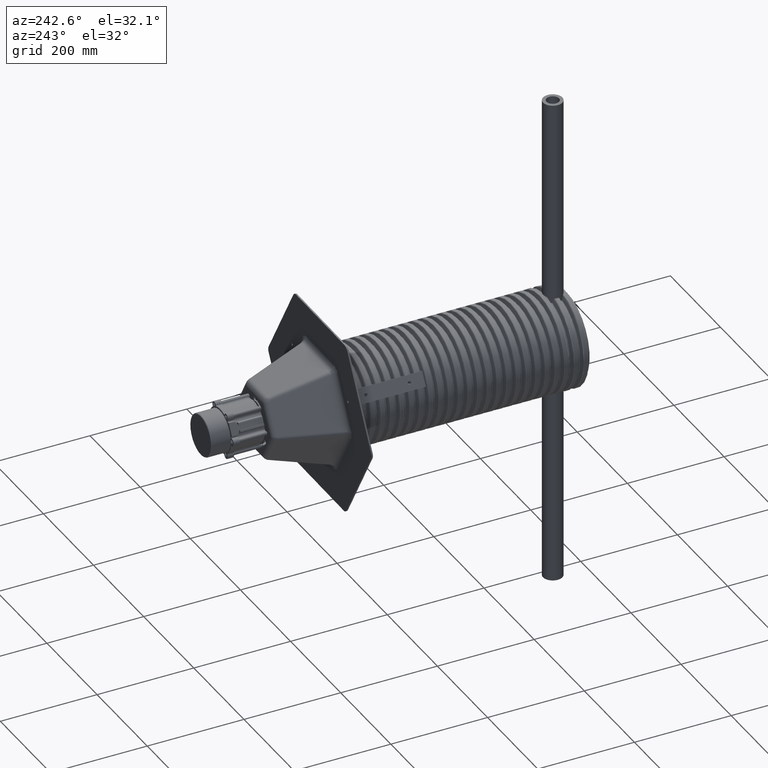
[diagram: clean part render]
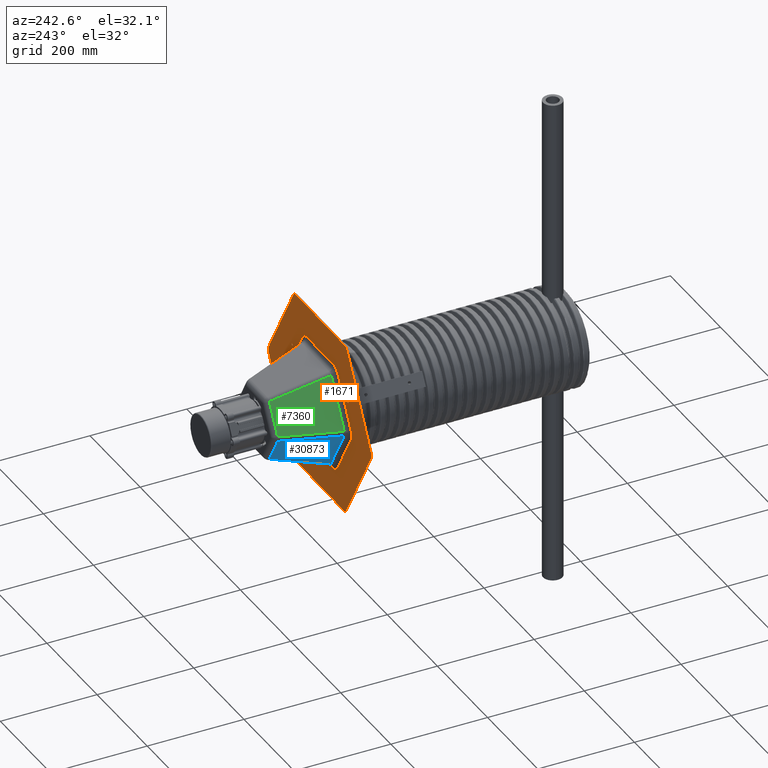
[diagram: same view with three faces highlighted in distinct colors, each labeled with its STEP entity id]
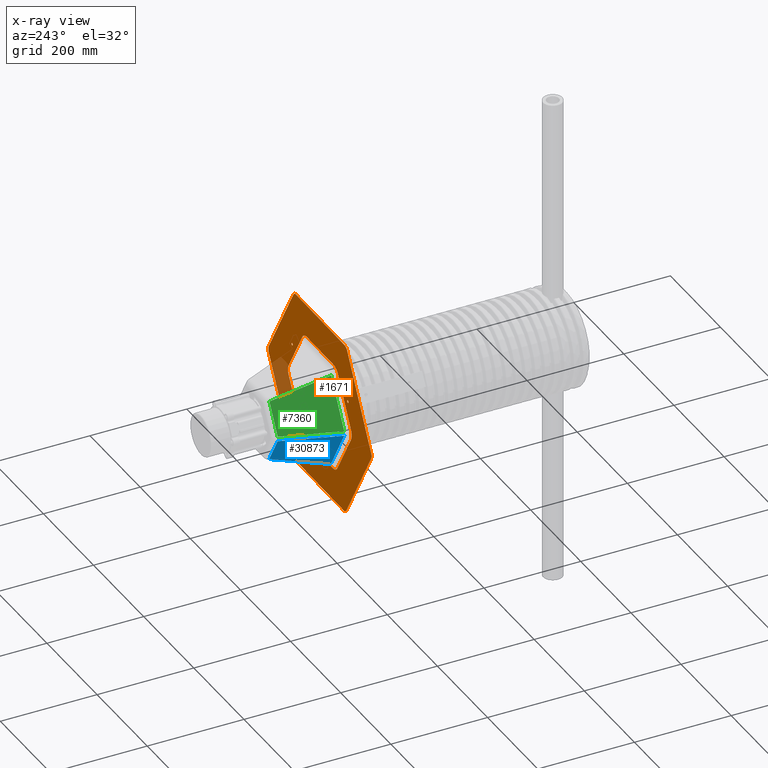
[diagram: x-ray of the same camera — body ghosted, the three highlighted faces saturated]
A machine part, auxiliary view with three faces highlighted in distinct colors.
The next image is the same camera in x-ray (body ghosted, the three faces saturated) — at least one of them is partly hidden behind the body in this view.
Their STEP definitions:

[orange] entity #1671 — the highlighted planar face has unit normal (-0, 1, 0).
#147 = CARTESIAN_POINT ( 'NONE',  ( -102.2335756172568040, -71.23590584283076055, 3.000000000000000000 ) ) ;
#188 = CARTESIAN_POINT ( 'NONE',  ( 63.69974159824984383, 111.8859771665176766, 3.000000000000000000 ) ) ;
#267 = VERTEX_POINT ( 'NONE', #6079 ) ;
#723 = VECTOR ( 'NONE', #41655, 1000.000000000000000 ) ;
#867 = LINE ( 'NONE', #17385, #27208 ) ;
#1041 = EDGE_LOOP ( 'NONE', ( #31811, #14384 ) ) ;
#1069 = ORIENTED_EDGE ( 'NONE', *, *, #26436, .T. ) ;
#1093 = CARTESIAN_POINT ( 'NONE',  ( 108.1334689171747954, 66.72215699525553134, 2.999999999999999112 ) ) ;
#1205 = DIRECTION ( 'NONE',  ( 1.000000000000000000, 0.0000000000000000000, 0.0000000000000000000 ) ) ;
#1225 = VECTOR ( 'NONE', #12747, 1000.000000000000114 ) ;
#1313 = LINE ( 'NONE', #3295, #19274 ) ;
#1415 = DIRECTION ( 'NONE',  ( 0.0000000000000000000, 0.0000000000000000000, 1.000000000000000000 ) ) ;
#1503 = CARTESIAN_POINT ( 'NONE',  ( -9.330518732437003138, 124.8735107438205461, 3.000000000000000000 ) ) ;
#1671 = ADVANCED_FACE ( 'NONE', ( #22682, #4730, #32199, #13161, #3617 ), #13228, .T. ) ;
#1733 = DIRECTION ( 'NONE',  ( 1.000000000000000000, 0.0000000000000000000, 0.0000000000000000000 ) ) ;
#1863 = DIRECTION ( 'NONE',  ( 1.000000000000000000, 0.0000000000000000000, 0.0000000000000000000 ) ) ;
#2224 = CARTESIAN_POINT ( 'NONE',  ( -109.9916431644735866, 63.50370478961811216, 2.999999999999998224 ) ) ;
#2310 = CARTESIAN_POINT ( 'NONE',  ( -7.316497875362673042, 126.0363062278059516, 2.999999999999999112 ) ) ;
#2505 = CARTESIAN_POINT ( 'NONE',  ( -102.2335756172568040, -71.23590584283076055, 3.000000000000000000 ) ) ;
#2562 = AXIS2_PLACEMENT_3D ( 'NONE', #8624, #33707, #12241 ) ;
#2678 = AXIS2_PLACEMENT_3D ( 'NONE', #22878, #1415, #26482 ) ;
#2725 = CARTESIAN_POINT ( 'NONE',  ( 105.4923940547533761, -69.35442614070198886, 2.999999999999999112 ) ) ;
#2804 = ORIENTED_EDGE ( 'NONE', *, *, #38245, .T. ) ;
#2971 = EDGE_CURVE ( 'NONE', #4984, #22494, #33375, .T. ) ;
#3295 = CARTESIAN_POINT ( 'NONE',  ( -3.642919299551294898E-14, -207.8460969082653094, 3.000000000000000000 ) ) ;
#3364 = ORIENTED_EDGE ( 'NONE', *, *, #19519, .T. ) ;
#3582 = ORIENTED_EDGE ( 'NONE', *, *, #10663, .F. ) ;
#3617 = FACE_OUTER_BOUND ( 'NONE', #19044, .T. ) ;
#3717 = ORIENTED_EDGE ( 'NONE', *, *, #33282, .T. ) ;
#3757 = DIRECTION ( 'NONE',  ( 1.000000000000000000, 0.0000000000000000000, 0.0000000000000000000 ) ) ;
#3760 = EDGE_CURVE ( 'NONE', #25364, #39553, #6571, .T. ) ;
#4418 = CARTESIAN_POINT ( 'NONE',  ( -180.0000000000000284, -96.99484522385709795, 3.000000000000000000 ) ) ;
#4618 = CARTESIAN_POINT ( 'NONE',  ( -1.865110631197190548E-14, -127.0074095792361959, 2.999999999999999112 ) ) ;
#4730 = FACE_BOUND ( 'NONE', #1041, .T. ) ;
#4876 = EDGE_CURVE ( 'NONE', #28813, #24734, #34017, .T. ) ;
#4889 = LINE ( 'NONE', #12559, #41852 ) ;
#4984 = VERTEX_POINT ( 'NONE', #44532 ) ;
#5138 = ORIENTED_EDGE ( 'NONE', *, *, #25126, .T. ) ;
#5460 = VECTOR ( 'NONE', #30139, 1000.000000000000114 ) ;
#5464 = AXIS2_PLACEMENT_3D ( 'NONE', #39173, #17772, #42741 ) ;
#5576 = LINE ( 'NONE', #9228, #21305 ) ;
#5612 = VERTEX_POINT ( 'NONE', #20996 ) ;
#5732 = CARTESIAN_POINT ( 'NONE',  ( 1.040834085586084257E-14, 207.8460969082652809, 3.000000000000000000 ) ) ;
#5823 = CARTESIAN_POINT ( 'NONE',  ( -105.4923940547534755, 69.35442614070194622, 2.999999999999999556 ) ) ;
#6030 = CARTESIAN_POINT ( 'NONE',  ( 5.999999999999984901, -204.3819952931275452, 3.000000000000000000 ) ) ;
#6044 = CARTESIAN_POINT ( 'NONE',  ( 112.8088919301160615, -56.68188008710408354, 2.999999999999999112 ) ) ;
#6055 = VERTEX_POINT ( 'NONE', #6030 ) ;
#6064 = CARTESIAN_POINT ( 'NONE',  ( -10.57531631285924156, 124.1548265256771657, 3.000000000000000000 ) ) ;
#6079 = CARTESIAN_POINT ( 'NONE',  ( 10.57531631285921137, -124.1548265256771941, 3.000000000000000000 ) ) ;
#6095 = CARTESIAN_POINT ( 'NONE',  ( -109.9916431644735439, -63.50370478961814058, 2.999999999999999112 ) ) ;
#6379 = ORIENTED_EDGE ( 'NONE', *, *, #19805, .T. ) ;
#6571 = LINE ( 'NONE', #26641, #12743 ) ;
#7240 = ORIENTED_EDGE ( 'NONE', *, *, #30800, .T. ) ;
#7308 = VECTOR ( 'NONE', #30798, 999.9999999999998863 ) ;
#7313 = EDGE_CURVE ( 'NONE', #34447, #4984, #37713, .T. ) ;
#7460 = AXIS2_PLACEMENT_3D ( 'NONE', #12027, #37102, #15670 ) ;
#7730 = EDGE_CURVE ( 'NONE', #39553, #23834, #39892, .T. ) ;
#7749 = ORIENTED_EDGE ( 'NONE', *, *, #16573, .T. ) ;
#7824 = ORIENTED_EDGE ( 'NONE', *, *, #40244, .T. ) ;
#7978 = ORIENTED_EDGE ( 'NONE', *, *, #21707, .T. ) ;
#7991 = CIRCLE ( 'NONE', #35001, 12.00000000000000000 ) ;
#8062 = CARTESIAN_POINT ( 'NONE',  ( 7.316497875362649950, -126.0363062278059516, 2.999999999999999556 ) ) ;
#8624 = CARTESIAN_POINT ( 'NONE',  ( 168.0000000000000284, -96.99484522385709795, 3.000000000000000000 ) ) ;
#9228 = CARTESIAN_POINT ( 'NONE',  ( 9.330518732436996032, -124.8735107438205603, 3.000000000000000000 ) ) ;
#9312 = VERTEX_POINT ( 'NONE', #46235 ) ;
#9639 = CARTESIAN_POINT ( 'NONE',  ( 111.8498174117721362, -60.28525258398089193, 2.999999999999999112 ) ) ;
#9707 = CARTESIAN_POINT ( 'NONE',  ( -109.9916431644735866, 63.50370478961811216, 2.999999999999998224 ) ) ;
#9818 = ORIENTED_EDGE ( 'NONE', *, *, #19896, .T. ) ;
#10147 = EDGE_CURVE ( 'NONE', #27359, #6055, #7991, .T. ) ;
#10273 = CARTESIAN_POINT ( 'NONE',  ( -109.9916431644735439, -63.50370478961814058, 2.999999999999999112 ) ) ;
#10361 = AXIS2_PLACEMENT_3D ( 'NONE', #38275, #16861, #41838 ) ;
#10455 = CARTESIAN_POINT ( 'NONE',  ( 10.57531631285926110, 124.1548265256772083, 3.000000000000000000 ) ) ;
#10663 = EDGE_CURVE ( 'NONE', #21794, #46121, #25895, .T. ) ;
#10746 = LINE ( 'NONE', #27024, #1225 ) ;
#11051 = CARTESIAN_POINT ( 'NONE',  ( 66.19974159824985804, 111.8859771665176766, 3.000000000000000000 ) ) ;
#11243 = ORIENTED_EDGE ( 'NONE', *, *, #13335, .T. ) ;
#11318 =( BOUNDED_CURVE ( )  B_SPLINE_CURVE ( 3, ( #40316, #8062, #26084, #4618 ),
 .UNSPECIFIED., .F., .F. ) 
 B_SPLINE_CURVE_WITH_KNOTS ( ( 4, 4 ),
 ( 5.781736827145353530, 6.283185307179586232 ),
 .UNSPECIFIED. ) 
 CURVE ( )  GEOMETRIC_REPRESENTATION_ITEM ( )  RATIONAL_B_SPLINE_CURVE ( ( 1.000000000000000000, 0.9791553251799451907, 0.9791553251799451907, 1.000000000000000000 ) ) 
 REPRESENTATION_ITEM ( '' )  );
#11348 = CARTESIAN_POINT ( 'NONE',  ( -1.821459649775647449E-14, -193.9896904477142812, 3.000000000000000000 ) ) ;
#11543 = EDGE_CURVE ( 'NONE', #19616, #24402, #18012, .T. ) ;
#11867 = LINE ( 'NONE', #1503, #29810 ) ;
#12027 = CARTESIAN_POINT ( 'NONE',  ( -128.5606159927932879, -0.9905632959438803731, 3.000000000000000000 ) ) ;
#12241 = DIRECTION ( 'NONE',  ( 1.000000000000000000, 0.0000000000000000000, 0.0000000000000000000 ) ) ;
#12246 = VERTEX_POINT ( 'NONE', #14460 ) ;
#12377 = EDGE_CURVE ( 'NONE', #14897, #19616, #22933, .T. ) ;
#12559 = CARTESIAN_POINT ( 'NONE',  ( -103.4783731976790477, -70.51722162468739441, 3.000000000000000000 ) ) ;
#12743 = VECTOR ( 'NONE', #23029, 1000.000000000000000 ) ;
#12747 = DIRECTION ( 'NONE',  ( 0.8660254037844385966, -0.4999999999999999445, 0.0000000000000000000 ) ) ;
#12865 = VERTEX_POINT ( 'NONE', #16584 ) ;
#12962 = CARTESIAN_POINT ( 'NONE',  ( 174.0000000000000568, 107.3871500692703620, 3.000000000000000000 ) ) ;
#13161 = FACE_BOUND ( 'NONE', #29061, .T. ) ;
#13228 = PLANE ( 'NONE',  #10361 ) ;
#13335 = EDGE_CURVE ( 'NONE', #24086, #12865, #15315, .T. ) ;
#13386 = CARTESIAN_POINT ( 'NONE',  ( 108.1334689171748806, -66.72215699525541766, 2.999999999999999112 ) ) ;
#13837 = EDGE_CURVE ( 'NONE', #18157, #23953, #40245, .T. ) ;
#13885 = CARTESIAN_POINT ( 'NONE',  ( 61.19974159824982252, 111.8859771665176766, 3.000000000000000000 ) ) ;
#14012 = CARTESIAN_POINT ( 'NONE',  ( 174.0000000000000568, -107.3871500692703336, 3.000000000000000000 ) ) ;
#14106 = VERTEX_POINT ( 'NONE', #14882 ) ;
#14384 = ORIENTED_EDGE ( 'NONE', *, *, #41165, .F. ) ;
#14428 = CARTESIAN_POINT ( 'NONE',  ( 112.8088919301159905, 52.91892068284668227, 3.000000000000000000 ) ) ;
#14460 = CARTESIAN_POINT ( 'NONE',  ( -180.0000000000000284, 96.99484522385709795, 3.000000000000000000 ) ) ;
#14882 = CARTESIAN_POINT ( 'NONE',  ( 66.99258023428301101, -110.8974878807649702, 3.000000000000000000 ) ) ;
#14897 = VERTEX_POINT ( 'NONE', #27316 ) ;
#14965 = DIRECTION ( 'NONE',  ( 1.000000000000000000, 0.0000000000000000000, 0.0000000000000000000 ) ) ;
#15032 = LINE ( 'NONE', #19369, #5460 ) ;
#15102 = ORIENTED_EDGE ( 'NONE', *, *, #3760, .T. ) ;
#15158 = CIRCLE ( 'NONE', #19287, 2.500000000000015987 ) ;
#15193 = CARTESIAN_POINT ( 'NONE',  ( -168.0000000000000000, -96.99484522385716900, 3.000000000000000000 ) ) ;
#15315 =( BOUNDED_CURVE ( )  B_SPLINE_CURVE ( 3, ( #2224, #30732, #5823, #30890 ),
 .UNSPECIFIED., .F., .F. ) 
 B_SPLINE_CURVE_WITH_KNOTS ( ( 4, 4 ),
 ( 0.0000000000000000000, 0.5014484800342330351 ),
 .UNSPECIFIED. ) 
 CURVE ( )  GEOMETRIC_REPRESENTATION_ITEM ( )  RATIONAL_B_SPLINE_CURVE ( ( 1.000000000000000000, 0.9791553251799451907, 0.9791553251799451907, 1.000000000000000000 ) ) 
 REPRESENTATION_ITEM ( '' )  );
#15644 = EDGE_CURVE ( 'NONE', #14106, #39595, #41146, .T. ) ;
#15670 = DIRECTION ( 'NONE',  ( 1.000000000000000000, 0.0000000000000000000, 0.0000000000000000000 ) ) ;
#16573 = EDGE_CURVE ( 'NONE', #6055, #24498, #1313, .T. ) ;
#16584 = CARTESIAN_POINT ( 'NONE',  ( -102.2335756172569035, 71.23590584283070370, 3.000000000000000000 ) ) ;
#16632 = CARTESIAN_POINT ( 'NONE',  ( 109.9916431644734018, 63.50370478961828269, 2.999999999999999112 ) ) ;
#16810 = CARTESIAN_POINT ( 'NONE',  ( -112.8088919301161468, 56.68188008710405512, 2.999999999999999112 ) ) ;
#16861 = DIRECTION ( 'NONE',  ( 0.0000000000000000000, 0.0000000000000000000, 1.000000000000000000 ) ) ;
#16944 = CARTESIAN_POINT ( 'NONE',  ( -10.57531631285924156, 124.1548265256771657, 3.000000000000000000 ) ) ;
#17334 = EDGE_CURVE ( 'NONE', #12865, #43586, #11867, .T. ) ;
#17385 = CARTESIAN_POINT ( 'NONE',  ( -180.0000000000000284, 103.9230484541325836, 3.000000000000000000 ) ) ;
#17639 = ORIENTED_EDGE ( 'NONE', *, *, #7313, .T. ) ;
#17726 = CARTESIAN_POINT ( 'NONE',  ( -112.8088919301161468, 54.35628911913325112, 3.000000000000000000 ) ) ;
#17772 = DIRECTION ( 'NONE',  ( 0.0000000000000000000, 0.0000000000000000000, 1.000000000000000000 ) ) ;
#18012 = LINE ( 'NONE', #5732, #7308 ) ;
#18155 = AXIS2_PLACEMENT_3D ( 'NONE', #15193, #40200, #18804 ) ;
#18157 = VERTEX_POINT ( 'NONE', #147 ) ;
#18317 = VERTEX_POINT ( 'NONE', #19251 ) ;
#18573 = DIRECTION ( 'NONE',  ( 0.0000000000000000000, 0.0000000000000000000, 1.000000000000000000 ) ) ;
#18804 = DIRECTION ( 'NONE',  ( 1.000000000000000000, 0.0000000000000000000, 0.0000000000000000000 ) ) ;
#19014 = CARTESIAN_POINT ( 'NONE',  ( -111.8498174117722073, -60.28525258398088482, 2.999999999999999112 ) ) ;
#19044 = EDGE_LOOP ( 'NONE', ( #6379, #19637, #20155, #5138, #37939, #9818, #2804, #28787, #7749, #37011, #15102, #41598 ) ) ;
#19173 = CARTESIAN_POINT ( 'NONE',  ( -126.0606159927933589, -0.9905632959438801510, 3.000000000000000000 ) ) ;
#19251 = CARTESIAN_POINT ( 'NONE',  ( -1.865110631197190548E-14, -127.0074095792361959, 2.999999999999999112 ) ) ;
#19274 = VECTOR ( 'NONE', #46171, 1000.000000000000000 ) ;
#19287 = AXIS2_PLACEMENT_3D ( 'NONE', #44581, #23196, #1733 ) ;
#19320 = CARTESIAN_POINT ( 'NONE',  ( -112.8088919301161042, -56.68188008710410486, 2.999999999999999112 ) ) ;
#19369 = CARTESIAN_POINT ( 'NONE',  ( 103.4783731976789625, 70.51722162468746546, 3.000000000000000000 ) ) ;
#19519 = EDGE_CURVE ( 'NONE', #29255, #267, #5576, .T. ) ;
#19616 = VERTEX_POINT ( 'NONE', #24294 ) ;
#19637 = ORIENTED_EDGE ( 'NONE', *, *, #12377, .T. ) ;
#19805 = EDGE_CURVE ( 'NONE', #23834, #14897, #37521, .T. ) ;
#19896 = EDGE_CURVE ( 'NONE', #38575, #26178, #31871, .T. ) ;
#20078 = DIRECTION ( 'NONE',  ( -0.8660254037844387076, -0.4999999999999998890, 0.0000000000000000000 ) ) ;
#20130 = EDGE_CURVE ( 'NONE', #43586, #37253, #21101, .T. ) ;
#20155 = ORIENTED_EDGE ( 'NONE', *, *, #11543, .T. ) ;
#20261 = CARTESIAN_POINT ( 'NONE',  ( 112.8088919301160900, -54.35628911913327954, 3.000000000000000000 ) ) ;
#20490 = CARTESIAN_POINT ( 'NONE',  ( 109.9916431644734871, -63.50370478961816900, 2.999999999999997335 ) ) ;
#20618 = ORIENTED_EDGE ( 'NONE', *, *, #29252, .T. ) ;
#20738 = ORIENTED_EDGE ( 'NONE', *, *, #24305, .T. ) ;
#20959 = ORIENTED_EDGE ( 'NONE', *, *, #23424, .T. ) ;
#20996 = CARTESIAN_POINT ( 'NONE',  ( 102.2335756172567187, 71.23590584283083160, 3.000000000000000000 ) ) ;
#21101 =( BOUNDED_CURVE ( )  B_SPLINE_CURVE ( 3, ( #6064, #2310, #45311, #31127 ),
 .UNSPECIFIED., .F., .F. ) 
 B_SPLINE_CURVE_WITH_KNOTS ( ( 4, 4 ),
 ( 5.781736827145351754, 6.283185307179586232 ),
 .UNSPECIFIED. ) 
 CURVE ( )  GEOMETRIC_REPRESENTATION_ITEM ( )  RATIONAL_B_SPLINE_CURVE ( ( 1.000000000000000000, 0.9791553251799449686, 0.9791553251799449686, 1.000000000000000000 ) ) 
 REPRESENTATION_ITEM ( '' )  );
#21136 = CARTESIAN_POINT ( 'NONE',  ( 2.385150481294069307E-14, 127.0074095792361675, 2.999999999999999112 ) ) ;
#21280 = CARTESIAN_POINT ( 'NONE',  ( -7.316497875362702352, -126.0363062278059516, 2.999999999999999112 ) ) ;
#21305 = VECTOR ( 'NONE', #20078, 1000.000000000000000 ) ;
#21426 = CARTESIAN_POINT ( 'NONE',  ( 64.49258023428306785, -110.8974878807649702, 3.000000000000000000 ) ) ;
#21570 = AXIS2_PLACEMENT_3D ( 'NONE', #44056, #22667, #1205 ) ;
#21707 = EDGE_CURVE ( 'NONE', #18317, #39635, #24538, .T. ) ;
#21794 = VERTEX_POINT ( 'NONE', #11051 ) ;
#22321 = CARTESIAN_POINT ( 'NONE',  ( 61.99258023428314601, -110.8974878807649702, 3.000000000000000000 ) ) ;
#22395 = CARTESIAN_POINT ( 'NONE',  ( 105.4923940547532908, 69.35442614070210254, 2.999999999999999112 ) ) ;
#22488 = ORIENTED_EDGE ( 'NONE', *, *, #32935, .T. ) ;
#22494 = VERTEX_POINT ( 'NONE', #43886 ) ;
#22503 = EDGE_CURVE ( 'NONE', #267, #18317, #11318, .T. ) ;
#22667 = DIRECTION ( 'NONE',  ( 0.0000000000000000000, 0.0000000000000000000, 1.000000000000000000 ) ) ;
#22682 = FACE_BOUND ( 'NONE', #26191, .T. ) ;
#22720 = EDGE_CURVE ( 'NONE', #22494, #29255, #27992, .T. ) ;
#22878 = CARTESIAN_POINT ( 'NONE',  ( 7.806255641895631925E-15, 193.9896904477142527, 3.000000000000000000 ) ) ;
#22933 = CIRCLE ( 'NONE', #2678, 12.00000000000000000 ) ;
#23029 = DIRECTION ( 'NONE',  ( 0.0000000000000000000, 1.000000000000000000, 0.0000000000000000000 ) ) ;
#23196 = DIRECTION ( 'NONE',  ( 0.0000000000000000000, 0.0000000000000000000, 1.000000000000000000 ) ) ;
#23320 = DIRECTION ( 'NONE',  ( 0.0000000000000000000, 0.0000000000000000000, 1.000000000000000000 ) ) ;
#23424 = EDGE_CURVE ( 'NONE', #43060, #36418, #26888, .T. ) ;
#23812 = CARTESIAN_POINT ( 'NONE',  ( 112.8088919301159905, 52.91892068284668227, 3.000000000000000000 ) ) ;
#23834 = VERTEX_POINT ( 'NONE', #12962 ) ;
#23953 = VERTEX_POINT ( 'NONE', #10273 ) ;
#23985 = CARTESIAN_POINT ( 'NONE',  ( -105.4923940547534187, -69.35442614070200307, 2.999999999999999112 ) ) ;
#23993 = CARTESIAN_POINT ( 'NONE',  ( -112.8088919301161468, 52.91892068284653305, 3.000000000000000000 ) ) ;
#24086 = VERTEX_POINT ( 'NONE', #43102 ) ;
#24294 = CARTESIAN_POINT ( 'NONE',  ( -6.000000000000008882, 204.3819952931275168, 3.000000000000000000 ) ) ;
#24305 = EDGE_CURVE ( 'NONE', #39129, #5612, #15032, .T. ) ;
#24402 = VERTEX_POINT ( 'NONE', #27327 ) ;
#24498 = VERTEX_POINT ( 'NONE', #14012 ) ;
#24538 =( BOUNDED_CURVE ( )  B_SPLINE_CURVE ( 3, ( #39088, #24722, #21280, #46267 ),
 .UNSPECIFIED., .F., .F. ) 
 B_SPLINE_CURVE_WITH_KNOTS ( ( 4, 4 ),
 ( 2.101014484786074759E-31, 0.5014484800342340343 ),
 .UNSPECIFIED. ) 
 CURVE ( )  GEOMETRIC_REPRESENTATION_ITEM ( )  RATIONAL_B_SPLINE_CURVE ( ( 1.000000000000000000, 0.9791553251799449686, 0.9791553251799449686, 1.000000000000000000 ) ) 
 REPRESENTATION_ITEM ( '' )  );
#24722 = CARTESIAN_POINT ( 'NONE',  ( -3.716348494597271124, -127.0074095792361959, 2.999999999999999112 ) ) ;
#24734 = VERTEX_POINT ( 'NONE', #19173 ) ;
#24901 = DIRECTION ( 'NONE',  ( -4.736361296511237478E-16, 1.000000000000000000, 0.0000000000000000000 ) ) ;
#25009 = DIRECTION ( 'NONE',  ( 1.000000000000000000, 0.0000000000000000000, 0.0000000000000000000 ) ) ;
#25025 = CARTESIAN_POINT ( 'NONE',  ( -112.8088919301161468, 52.91892068284653305, 3.000000000000000000 ) ) ;
#25126 = EDGE_CURVE ( 'NONE', #24402, #12246, #46242, .T. ) ;
#25188 = ORIENTED_EDGE ( 'NONE', *, *, #17334, .T. ) ;
#25234 = DIRECTION ( 'NONE',  ( 0.0000000000000000000, 0.0000000000000000000, 1.000000000000000000 ) ) ;
#25352 = DIRECTION ( 'NONE',  ( -0.8660254037844385966, 0.5000000000000000000, 0.0000000000000000000 ) ) ;
#25364 = VERTEX_POINT ( 'NONE', #28181 ) ;
#25619 = CARTESIAN_POINT ( 'NONE',  ( 180.0000000000000568, 96.99484522385711216, 3.000000000000000000 ) ) ;
#25830 = CARTESIAN_POINT ( 'NONE',  ( 10.57531631285926110, 124.1548265256772083, 3.000000000000000000 ) ) ;
#25895 = CIRCLE ( 'NONE', #25996, 2.500000000000015987 ) ;
#25996 = AXIS2_PLACEMENT_3D ( 'NONE', #188, #25234, #3757 ) ;
#26003 = CARTESIAN_POINT ( 'NONE',  ( 102.2335756172567187, 71.23590584283083160, 3.000000000000000000 ) ) ;
#26084 = CARTESIAN_POINT ( 'NONE',  ( 3.716348494597223606, -127.0074095792361959, 2.999999999999999556 ) ) ;
#26148 = CARTESIAN_POINT ( 'NONE',  ( 109.9916431644734018, 63.50370478961828269, 2.999999999999999112 ) ) ;
#26178 = VERTEX_POINT ( 'NONE', #40408 ) ;
#26191 = EDGE_LOOP ( 'NONE', ( #33075, #37182 ) ) ;
#26436 = EDGE_CURVE ( 'NONE', #36418, #24086, #42506, .T. ) ;
#26482 = DIRECTION ( 'NONE',  ( 1.000000000000000000, 0.0000000000000000000, 0.0000000000000000000 ) ) ;
#26641 = CARTESIAN_POINT ( 'NONE',  ( 180.0000000000000568, -103.9230484541325978, 3.000000000000000000 ) ) ;
#26888 = LINE ( 'NONE', #17726, #42511 ) ;
#27024 = CARTESIAN_POINT ( 'NONE',  ( -180.0000000000000284, -103.9230484541326831, 3.000000000000000000 ) ) ;
#27208 = VECTOR ( 'NONE', #42372, 1000.000000000000000 ) ;
#27316 = CARTESIAN_POINT ( 'NONE',  ( 6.000000000000032863, 204.3819952931275168, 3.000000000000000000 ) ) ;
#27327 = CARTESIAN_POINT ( 'NONE',  ( -174.0000000000000853, 107.3871500692703194, 3.000000000000000000 ) ) ;
#27348 = CARTESIAN_POINT ( 'NONE',  ( -6.000000000000116351, -204.3819952931275168, 3.000000000000000000 ) ) ;
#27359 = VERTEX_POINT ( 'NONE', #27348 ) ;
#27588 = CARTESIAN_POINT ( 'NONE',  ( -108.1334689171749091, -66.72215699525544608, 2.999999999999999112 ) ) ;
#27806 = CARTESIAN_POINT ( 'NONE',  ( 102.2335756172568324, -71.23590584283073213, 3.000000000000000000 ) ) ;
#27992 =( BOUNDED_CURVE ( )  B_SPLINE_CURVE ( 3, ( #38436, #13386, #2725, #27806 ),
 .UNSPECIFIED., .F., .F. ) 
 B_SPLINE_CURVE_WITH_KNOTS ( ( 4, 4 ),
 ( 3.154042683594196107E-16, 0.5014484800342314808 ),
 .UNSPECIFIED. ) 
 CURVE ( )  GEOMETRIC_REPRESENTATION_ITEM ( )  RATIONAL_B_SPLINE_CURVE ( ( 1.000000000000000000, 0.9791553251799453017, 0.9791553251799453017, 1.000000000000000000 ) ) 
 REPRESENTATION_ITEM ( '' )  );
#28181 = CARTESIAN_POINT ( 'NONE',  ( 180.0000000000000568, -96.99484522385709795, 3.000000000000000000 ) ) ;
#28787 = ORIENTED_EDGE ( 'NONE', *, *, #10147, .T. ) ;
#28813 = VERTEX_POINT ( 'NONE', #38122 ) ;
#28853 =( BOUNDED_CURVE ( )  B_SPLINE_CURVE ( 3, ( #21136, #42519, #31899, #10455 ),
 .UNSPECIFIED., .F., .F. ) 
 B_SPLINE_CURVE_WITH_KNOTS ( ( 4, 4 ),
 ( 5.252536211965191278E-32, 0.5014484800342331461 ),
 .UNSPECIFIED. ) 
 CURVE ( )  GEOMETRIC_REPRESENTATION_ITEM ( )  RATIONAL_B_SPLINE_CURVE ( ( 1.000000000000000000, 0.9791553251799451907, 0.9791553251799451907, 1.000000000000000000 ) ) 
 REPRESENTATION_ITEM ( '' )  );
#29061 = EDGE_LOOP ( 'NONE', ( #20738, #22488, #7824, #17639, #33382, #45029, #3364, #31359, #7978, #20618, #30587, #7240, #20959, #1069, #11243, #25188, #34962, #3717 ) ) ;
#29252 = EDGE_CURVE ( 'NONE', #39635, #18157, #4889, .T. ) ;
#29255 = VERTEX_POINT ( 'NONE', #30427 ) ;
#29467 = EDGE_LOOP ( 'NONE', ( #36396, #3582 ) ) ;
#29677 = CIRCLE ( 'NONE', #37659, 2.499999999999932943 ) ;
#29810 = VECTOR ( 'NONE', #33782, 1000.000000000000000 ) ;
#30002 = CARTESIAN_POINT ( 'NONE',  ( -10.57531631285926998, -124.1548265256772083, 3.000000000000000000 ) ) ;
#30139 = DIRECTION ( 'NONE',  ( 0.8660254037844388186, -0.4999999999999996669, 0.0000000000000000000 ) ) ;
#30427 = CARTESIAN_POINT ( 'NONE',  ( 102.2335756172568324, -71.23590584283073213, 3.000000000000000000 ) ) ;
#30587 = ORIENTED_EDGE ( 'NONE', *, *, #13837, .T. ) ;
#30732 = CARTESIAN_POINT ( 'NONE',  ( -108.1334689171749801, 66.72215699525540344, 2.999999999999999556 ) ) ;
#30798 = DIRECTION ( 'NONE',  ( -0.8660254037844385966, -0.5000000000000002220, 0.0000000000000000000 ) ) ;
#30800 = EDGE_CURVE ( 'NONE', #23953, #43060, #43079, .T. ) ;
#30890 = CARTESIAN_POINT ( 'NONE',  ( -102.2335756172569035, 71.23590584283070370, 3.000000000000000000 ) ) ;
#31127 = CARTESIAN_POINT ( 'NONE',  ( 2.385150481294069307E-14, 127.0074095792361675, 2.999999999999999112 ) ) ;
#31170 = CARTESIAN_POINT ( 'NONE',  ( -111.8498174117722357, 60.28525258398084219, 2.999999999999999112 ) ) ;
#31359 = ORIENTED_EDGE ( 'NONE', *, *, #22503, .T. ) ;
#31545 = CIRCLE ( 'NONE', #2562, 12.00000000000001066 ) ;
#31811 = ORIENTED_EDGE ( 'NONE', *, *, #4876, .F. ) ;
#31871 = CIRCLE ( 'NONE', #18155, 12.00000000000001066 ) ;
#31899 = CARTESIAN_POINT ( 'NONE',  ( 7.316497875362693470, 126.0363062278059516, 2.999999999999999556 ) ) ;
#32199 = FACE_BOUND ( 'NONE', #29467, .T. ) ;
#32512 = EDGE_CURVE ( 'NONE', #24498, #25364, #31545, .T. ) ;
#32935 = EDGE_CURVE ( 'NONE', #5612, #9312, #40571, .T. ) ;
#33075 = ORIENTED_EDGE ( 'NONE', *, *, #39431, .F. ) ;
#33282 = EDGE_CURVE ( 'NONE', #37253, #39129, #28853, .T. ) ;
#33375 =( BOUNDED_CURVE ( )  B_SPLINE_CURVE ( 3, ( #41876, #6044, #9639, #20490 ),
 .UNSPECIFIED., .F., .F. ) 
 B_SPLINE_CURVE_WITH_KNOTS ( ( 4, 4 ),
 ( 5.781736827145350865, 6.283185307179586232 ),
 .UNSPECIFIED. ) 
 CURVE ( )  GEOMETRIC_REPRESENTATION_ITEM ( )  RATIONAL_B_SPLINE_CURVE ( ( 1.000000000000000000, 0.9791553251799449686, 0.9791553251799449686, 1.000000000000000000 ) ) 
 REPRESENTATION_ITEM ( '' )  );
#33382 = ORIENTED_EDGE ( 'NONE', *, *, #2971, .T. ) ;
#33534 = CARTESIAN_POINT ( 'NONE',  ( -109.9916431644735439, -63.50370478961814058, 2.999999999999999112 ) ) ;
#33629 = AXIS2_PLACEMENT_3D ( 'NONE', #44702, #23320, #1863 ) ;
#33707 = DIRECTION ( 'NONE',  ( 0.0000000000000000000, 0.0000000000000000000, 1.000000000000000000 ) ) ;
#33782 = DIRECTION ( 'NONE',  ( 0.8660254037844388186, 0.4999999999999997224, -0.0000000000000000000 ) ) ;
#34017 = CIRCLE ( 'NONE', #7460, 2.499999999999919176 ) ;
#34447 = VERTEX_POINT ( 'NONE', #14428 ) ;
#34826 = CARTESIAN_POINT ( 'NONE',  ( -112.8088919301161042, -52.91892068284656858, 3.000000000000000000 ) ) ;
#34962 = ORIENTED_EDGE ( 'NONE', *, *, #20130, .T. ) ;
#35001 = AXIS2_PLACEMENT_3D ( 'NONE', #11348, #36412, #14965 ) ;
#35220 = DIRECTION ( 'NONE',  ( 0.0000000000000000000, 0.0000000000000000000, 1.000000000000000000 ) ) ;
#36319 = EDGE_CURVE ( 'NONE', #12246, #38575, #867, .T. ) ;
#36396 = ORIENTED_EDGE ( 'NONE', *, *, #45357, .F. ) ;
#36412 = DIRECTION ( 'NONE',  ( 0.0000000000000000000, 0.0000000000000000000, 1.000000000000000000 ) ) ;
#36418 = VERTEX_POINT ( 'NONE', #25025 ) ;
#37011 = ORIENTED_EDGE ( 'NONE', *, *, #32512, .T. ) ;
#37102 = DIRECTION ( 'NONE',  ( 0.0000000000000000000, 0.0000000000000000000, 1.000000000000000000 ) ) ;
#37182 = ORIENTED_EDGE ( 'NONE', *, *, #15644, .F. ) ;
#37253 = VERTEX_POINT ( 'NONE', #37327 ) ;
#37327 = CARTESIAN_POINT ( 'NONE',  ( 2.385150481294069307E-14, 127.0074095792361675, 2.999999999999999112 ) ) ;
#37521 = LINE ( 'NONE', #39590, #44719 ) ;
#37635 = DIRECTION ( 'NONE',  ( -0.8660254037844387076, 0.4999999999999998335, 0.0000000000000000000 ) ) ;
#37659 = AXIS2_PLACEMENT_3D ( 'NONE', #21426, #35220, #25009 ) ;
#37713 = LINE ( 'NONE', #20261, #723 ) ;
#37939 = ORIENTED_EDGE ( 'NONE', *, *, #36319, .T. ) ;
#38042 = CARTESIAN_POINT ( 'NONE',  ( 111.8498174117720509, 60.28525258398101272, 2.999999999999999112 ) ) ;
#38122 = CARTESIAN_POINT ( 'NONE',  ( -131.0606159927932026, -0.9905632959438803731, 3.000000000000000000 ) ) ;
#38245 = EDGE_CURVE ( 'NONE', #26178, #27359, #10746, .T. ) ;
#38275 = CARTESIAN_POINT ( 'NONE',  ( 0.0000000000000000000, 0.0000000000000000000, 3.000000000000000000 ) ) ;
#38436 = CARTESIAN_POINT ( 'NONE',  ( 109.9916431644734871, -63.50370478961816900, 2.999999999999997335 ) ) ;
#38575 = VERTEX_POINT ( 'NONE', #4418 ) ;
#39088 = CARTESIAN_POINT ( 'NONE',  ( -1.865110631197190548E-14, -127.0074095792361959, 2.999999999999999112 ) ) ;
#39091 = CIRCLE ( 'NONE', #45740, 2.499999999999919176 ) ;
#39129 = VERTEX_POINT ( 'NONE', #25830 ) ;
#39173 = CARTESIAN_POINT ( 'NONE',  ( 168.0000000000000284, 96.99484522385711216, 3.000000000000000000 ) ) ;
#39431 = EDGE_CURVE ( 'NONE', #39595, #14106, #29677, .T. ) ;
#39553 = VERTEX_POINT ( 'NONE', #25619 ) ;
#39590 = CARTESIAN_POINT ( 'NONE',  ( 180.0000000000000568, 103.9230484541326121, 3.000000000000000000 ) ) ;
#39595 = VERTEX_POINT ( 'NONE', #22321 ) ;
#39635 = VERTEX_POINT ( 'NONE', #30002 ) ;
#39892 = CIRCLE ( 'NONE', #5464, 12.00000000000001066 ) ;
#39975 = CARTESIAN_POINT ( 'NONE',  ( -128.5606159927932879, -0.9905632959438803731, 3.000000000000000000 ) ) ;
#40200 = DIRECTION ( 'NONE',  ( 0.0000000000000000000, 0.0000000000000000000, 1.000000000000000000 ) ) ;
#40244 = EDGE_CURVE ( 'NONE', #9312, #34447, #40821, .T. ) ;
#40245 =( BOUNDED_CURVE ( )  B_SPLINE_CURVE ( 3, ( #2505, #23985, #27588, #6095 ),
 .UNSPECIFIED., .F., .F. ) 
 B_SPLINE_CURVE_WITH_KNOTS ( ( 4, 4 ),
 ( 5.781736827145351754, 6.283185307179586232 ),
 .UNSPECIFIED. ) 
 CURVE ( )  GEOMETRIC_REPRESENTATION_ITEM ( )  RATIONAL_B_SPLINE_CURVE ( ( 1.000000000000000000, 0.9791553251799449686, 0.9791553251799449686, 1.000000000000000000 ) ) 
 REPRESENTATION_ITEM ( '' )  );
#40316 = CARTESIAN_POINT ( 'NONE',  ( 10.57531631285921137, -124.1548265256771941, 3.000000000000000000 ) ) ;
#40408 = CARTESIAN_POINT ( 'NONE',  ( -174.0000000000000284, -107.3871500692704331, 3.000000000000000000 ) ) ;
#40571 =( BOUNDED_CURVE ( )  B_SPLINE_CURVE ( 3, ( #26003, #22395, #1093, #26148 ),
 .UNSPECIFIED., .F., .F. ) 
 B_SPLINE_CURVE_WITH_KNOTS ( ( 4, 4 ),
 ( 5.781736827145355306, 6.283185307179586232 ),
 .UNSPECIFIED. ) 
 CURVE ( )  GEOMETRIC_REPRESENTATION_ITEM ( )  RATIONAL_B_SPLINE_CURVE ( ( 1.000000000000000000, 0.9791553251799453017, 0.9791553251799453017, 1.000000000000000000 ) ) 
 REPRESENTATION_ITEM ( '' )  );
#40821 =( BOUNDED_CURVE ( )  B_SPLINE_CURVE ( 3, ( #16632, #38042, #45184, #23812 ),
 .UNSPECIFIED., .F., .F. ) 
 B_SPLINE_CURVE_WITH_KNOTS ( ( 4, 4 ),
 ( 2.365532012695644245E-16, 0.5014484800342345894 ),
 .UNSPECIFIED. ) 
 CURVE ( )  GEOMETRIC_REPRESENTATION_ITEM ( )  RATIONAL_B_SPLINE_CURVE ( ( 1.000000000000000000, 0.9791553251799449686, 0.9791553251799449686, 1.000000000000000000 ) ) 
 REPRESENTATION_ITEM ( '' )  );
#41146 = CIRCLE ( 'NONE', #21570, 2.499999999999932943 ) ;
#41165 = EDGE_CURVE ( 'NONE', #24734, #28813, #39091, .T. ) ;
#41598 = ORIENTED_EDGE ( 'NONE', *, *, #7730, .T. ) ;
#41655 = DIRECTION ( 'NONE',  ( 9.472722593022467068E-16, -1.000000000000000000, 0.0000000000000000000 ) ) ;
#41838 = DIRECTION ( 'NONE',  ( 1.000000000000000000, 0.0000000000000000000, -0.0000000000000000000 ) ) ;
#41852 = VECTOR ( 'NONE', #37635, 1000.000000000000000 ) ;
#41876 = CARTESIAN_POINT ( 'NONE',  ( 112.8088919301160900, -52.91892068284654016, 3.000000000000000000 ) ) ;
#42372 = DIRECTION ( 'NONE',  ( 0.0000000000000000000, -1.000000000000000000, 0.0000000000000000000 ) ) ;
#42506 =( BOUNDED_CURVE ( )  B_SPLINE_CURVE ( 3, ( #23993, #16810, #31170, #9707 ),
 .UNSPECIFIED., .F., .F. ) 
 B_SPLINE_CURVE_WITH_KNOTS ( ( 4, 4 ),
 ( 5.781736827145352642, 6.283185307179586232 ),
 .UNSPECIFIED. ) 
 CURVE ( )  GEOMETRIC_REPRESENTATION_ITEM ( )  RATIONAL_B_SPLINE_CURVE ( ( 1.000000000000000000, 0.9791553251799449686, 0.9791553251799449686, 1.000000000000000000 ) ) 
 REPRESENTATION_ITEM ( '' )  );
#42511 = VECTOR ( 'NONE', #24901, 1000.000000000000000 ) ;
#42519 = CARTESIAN_POINT ( 'NONE',  ( 3.716348494597269347, 127.0074095792361675, 2.999999999999999556 ) ) ;
#42741 = DIRECTION ( 'NONE',  ( 1.000000000000000000, 0.0000000000000000000, 0.0000000000000000000 ) ) ;
#43060 = VERTEX_POINT ( 'NONE', #34826 ) ;
#43079 =( BOUNDED_CURVE ( )  B_SPLINE_CURVE ( 3, ( #33534, #19014, #19320, #44287 ),
 .UNSPECIFIED., .F., .F. ) 
 B_SPLINE_CURVE_WITH_KNOTS ( ( 4, 4 ),
 ( 2.365532012695645231E-16, 0.5014484800342338122 ),
 .UNSPECIFIED. ) 
 CURVE ( )  GEOMETRIC_REPRESENTATION_ITEM ( )  RATIONAL_B_SPLINE_CURVE ( ( 1.000000000000000000, 0.9791553251799449686, 0.9791553251799449686, 1.000000000000000000 ) ) 
 REPRESENTATION_ITEM ( '' )  );
#43102 = CARTESIAN_POINT ( 'NONE',  ( -109.9916431644735866, 63.50370478961811216, 2.999999999999998224 ) ) ;
#43537 = DIRECTION ( 'NONE',  ( 1.000000000000000000, 0.0000000000000000000, 0.0000000000000000000 ) ) ;
#43586 = VERTEX_POINT ( 'NONE', #16944 ) ;
#43886 = CARTESIAN_POINT ( 'NONE',  ( 109.9916431644734871, -63.50370478961816900, 2.999999999999997335 ) ) ;
#44056 = CARTESIAN_POINT ( 'NONE',  ( 64.49258023428306785, -110.8974878807649702, 3.000000000000000000 ) ) ;
#44287 = CARTESIAN_POINT ( 'NONE',  ( -112.8088919301161042, -52.91892068284656858, 3.000000000000000000 ) ) ;
#44532 = CARTESIAN_POINT ( 'NONE',  ( 112.8088919301160900, -52.91892068284654016, 3.000000000000000000 ) ) ;
#44581 = CARTESIAN_POINT ( 'NONE',  ( 63.69974159824984383, 111.8859771665176766, 3.000000000000000000 ) ) ;
#44702 = CARTESIAN_POINT ( 'NONE',  ( -168.0000000000000000, 96.99484522385709795, 3.000000000000000000 ) ) ;
#44719 = VECTOR ( 'NONE', #25352, 1000.000000000000227 ) ;
#45029 = ORIENTED_EDGE ( 'NONE', *, *, #22720, .T. ) ;
#45184 = CARTESIAN_POINT ( 'NONE',  ( 112.8088919301159763, 56.68188008710421855, 2.999999999999999112 ) ) ;
#45311 = CARTESIAN_POINT ( 'NONE',  ( -3.716348494597231600, 127.0074095792361675, 2.999999999999999112 ) ) ;
#45357 = EDGE_CURVE ( 'NONE', #46121, #21794, #15158, .T. ) ;
#45740 = AXIS2_PLACEMENT_3D ( 'NONE', #39975, #18573, #43537 ) ;
#46121 = VERTEX_POINT ( 'NONE', #13885 ) ;
#46171 = DIRECTION ( 'NONE',  ( 0.8660254037844385966, 0.5000000000000001110, 0.0000000000000000000 ) ) ;
#46235 = CARTESIAN_POINT ( 'NONE',  ( 109.9916431644734018, 63.50370478961828269, 2.999999999999999112 ) ) ;
#46242 = CIRCLE ( 'NONE', #33629, 12.00000000000001066 ) ;
#46267 = CARTESIAN_POINT ( 'NONE',  ( -10.57531631285926998, -124.1548265256772083, 3.000000000000000000 ) ) ;

[blue] entity #30873 — the highlighted planar face has unit normal (-0.8282, 0.2752, -0.4883).
#951 = CARTESIAN_POINT ( 'NONE',  ( -89.74713911652985132, 57.36613649155890471, 35.16859414319462473 ) ) ;
#1927 = CARTESIAN_POINT ( 'NONE',  ( -96.46522126478822656, 61.24482302829390079, 11.69782613155777007 ) ) ;
#2579 = VECTOR ( 'NONE', #36501, 1000.000000000000000 ) ;
#2704 = LINE ( 'NONE', #951, #21770 ) ;
#3551 = CARTESIAN_POINT ( 'NONE',  ( -97.71001884521045611, 60.52613881015052044, 11.69782613155778783 ) ) ;
#3735 = EDGE_LOOP ( 'NONE', ( #20457, #16069, #19365, #42031 ) ) ;
#4382 = DIRECTION ( 'NONE',  ( 0.2717725502388413372, -0.1569079550387461885, 0.9494838464040530335 ) ) ;
#4956 = CARTESIAN_POINT ( 'NONE',  ( -4.806961960390543354, 75.29408252217598374, 129.3021738684422246 ) ) ;
#5292 = FACE_OUTER_BOUND ( 'NONE', #3735, .T. ) ;
#5634 = DIRECTION ( 'NONE',  ( -0.4806961960390562782, 0.8325902345447354636, 0.2751811557035179212 ) ) ;
#8193 = CARTESIAN_POINT ( 'NONE',  ( -4.806961960390556676, 114.1637437111403699, 11.69782613155778961 ) ) ;
#13318 = VERTEX_POINT ( 'NONE', #1927 ) ;
#15117 = VECTOR ( 'NONE', #26373, 1000.000000000000000 ) ;
#16069 = ORIENTED_EDGE ( 'NONE', *, *, #21714, .T. ) ;
#18306 = VERTEX_POINT ( 'NONE', #4956 ) ;
#19365 = ORIENTED_EDGE ( 'NONE', *, *, #40068, .T. ) ;
#20457 = ORIENTED_EDGE ( 'NONE', *, *, #41702, .T. ) ;
#21714 = EDGE_CURVE ( 'NONE', #44480, #13318, #38447, .T. ) ;
#21770 = VECTOR ( 'NONE', #4382, 999.9999999999998863 ) ;
#22774 = CARTESIAN_POINT ( 'NONE',  ( -33.80503459952077350, 58.55203747799383507, 129.3021738684422246 ) ) ;
#23740 = CARTESIAN_POINT ( 'NONE',  ( -62.80310723865100186, 41.80999243381168640, 129.3021738684422246 ) ) ;
#25742 = LINE ( 'NONE', #22774, #15117 ) ;
#25845 = VERTEX_POINT ( 'NONE', #23740 ) ;
#26373 = DIRECTION ( 'NONE',  ( 0.8660254037844388186, 0.4999999999999997224, -1.854289510869136585E-19 ) ) ;
#27128 = CARTESIAN_POINT ( 'NONE',  ( -48.34906166406021555, 83.74303130043300314, 27.67808602507797033 ) ) ;
#28052 = AXIS2_PLACEMENT_3D ( 'NONE', #27128, #5634, #30704 ) ;
#28648 = DIRECTION ( 'NONE',  ( -0.8660254037844388186, -0.4999999999999997224, 1.972629113372267717E-18 ) ) ;
#28943 = VECTOR ( 'NONE', #28648, 1000.000000000000000 ) ;
#29457 = CARTESIAN_POINT ( 'NONE',  ( -4.806961960390557564, 106.4063706376703919, 35.16859414319461763 ) ) ;
#30557 = PLANE ( 'NONE',  #28052 ) ;
#30704 = DIRECTION ( 'NONE',  ( -0.8660254037844388186, -0.4999999999999997224, 0.0000000000000000000 ) ) ;
#30873 = ADVANCED_FACE ( 'NONE', ( #5292 ), #30557, .T. ) ;
#31167 = LINE ( 'NONE', #29457, #2579 ) ;
#31284 = EDGE_CURVE ( 'NONE', #25845, #18306, #25742, .T. ) ;
#36501 = DIRECTION ( 'NONE',  ( 2.775557561562891351E-17, 0.3138159100774922106, -0.9494838464040530335 ) ) ;
#38447 = LINE ( 'NONE', #3551, #28943 ) ;
#40068 = EDGE_CURVE ( 'NONE', #13318, #25845, #2704, .T. ) ;
#41702 = EDGE_CURVE ( 'NONE', #18306, #44480, #31167, .T. ) ;
#42031 = ORIENTED_EDGE ( 'NONE', *, *, #31284, .T. ) ;
#44480 = VERTEX_POINT ( 'NONE', #8193 ) ;

[green] entity #7360 — the highlighted planar face has unit normal (-0.8369, 0.2752, 0.4731).
#1234 = VERTEX_POINT ( 'NONE', #33561 ) ;
#2293 = VECTOR ( 'NONE', #4726, 1000.000000000000000 ) ;
#2344 = VERTEX_POINT ( 'NONE', #11079 ) ;
#2843 = CARTESIAN_POINT ( 'NONE',  ( -101.2721832251787930, 52.91892068284654016, 11.69782613155778961 ) ) ;
#4726 = DIRECTION ( 'NONE',  ( 4.736361296511237478E-16, -1.000000000000000000, 5.229490850100713378E-33 ) ) ;
#5137 = VERTEX_POINT ( 'NONE', #42269 ) ;
#6647 = LINE ( 'NONE', #23476, #36976 ) ;
#7360 = ADVANCED_FACE ( 'NONE', ( #18685 ), #27770, .T. ) ;
#7386 = VERTEX_POINT ( 'NONE', #2843 ) ;
#9372 = CARTESIAN_POINT ( 'NONE',  ( -94.55410107692041777, 49.04023414611154408, 35.16859414319463184 ) ) ;
#9537 = ORIENTED_EDGE ( 'NONE', *, *, #36948, .T. ) ;
#11079 = CARTESIAN_POINT ( 'NONE',  ( -67.61006919904154699, -33.48409008836433287, 129.3021738684422246 ) ) ;
#14273 = VECTOR ( 'NONE', #17496, 1000.000000000000000 ) ;
#15580 = CARTESIAN_POINT ( 'NONE',  ( -101.2721832251787362, -54.35628911913329375, 11.69782613155778606 ) ) ;
#17496 = DIRECTION ( 'NONE',  ( -4.736361296511237478E-16, 1.000000000000000000, -2.054785618447901159E-33 ) ) ;
#18300 = LINE ( 'NONE', #9372, #44547 ) ;
#18685 = FACE_OUTER_BOUND ( 'NONE', #25057, .T. ) ;
#20227 = DIRECTION ( 'NONE',  ( -0.2717725502388413372, 0.1569079550387461885, -0.9494838464040530335 ) ) ;
#20721 = DIRECTION ( 'NONE',  ( -0.9613923920781131116, -4.553501716599131913E-16, 0.2751811557035178657 ) ) ;
#20924 = CARTESIAN_POINT ( 'NONE',  ( -67.61006919904156121, -3.202257150087870244E-14, 129.3021738684422246 ) ) ;
#23476 = CARTESIAN_POINT ( 'NONE',  ( -94.55410107692037514, -49.04023414611156539, 35.16859414319461763 ) ) ;
#23794 = LINE ( 'NONE', #20924, #14273 ) ;
#25057 = EDGE_LOOP ( 'NONE', ( #42248, #30816, #33730, #9537 ) ) ;
#27770 = PLANE ( 'NONE',  #36098 ) ;
#29771 = LINE ( 'NONE', #15580, #2293 ) ;
#30816 = ORIENTED_EDGE ( 'NONE', *, *, #38624, .T. ) ;
#33561 = CARTESIAN_POINT ( 'NONE',  ( -101.2721832251787362, -52.91892068284656148, 11.69782613155778961 ) ) ;
#33730 = ORIENTED_EDGE ( 'NONE', *, *, #34740, .T. ) ;
#34274 = DIRECTION ( 'NONE',  ( 0.2717725502388411707, 0.1569079550387463828, 0.9494838464040530335 ) ) ;
#34740 = EDGE_CURVE ( 'NONE', #1234, #2344, #6647, .T. ) ;
#36098 = AXIS2_PLACEMENT_3D ( 'NONE', #42114, #20721, #45696 ) ;
#36948 = EDGE_CURVE ( 'NONE', #2344, #5137, #23794, .T. ) ;
#36976 = VECTOR ( 'NONE', #34274, 1000.000000000000000 ) ;
#38624 = EDGE_CURVE ( 'NONE', #7386, #1234, #29771, .T. ) ;
#41828 = EDGE_CURVE ( 'NONE', #5137, #7386, #18300, .T. ) ;
#42114 = CARTESIAN_POINT ( 'NONE',  ( -96.69812332812045952, -4.579972487765802044E-14, 27.67808602507795968 ) ) ;
#42248 = ORIENTED_EDGE ( 'NONE', *, *, #41828, .T. ) ;
#42269 = CARTESIAN_POINT ( 'NONE',  ( -67.61006919904157542, 33.48409008836432577, 129.3021738684422246 ) ) ;
#44547 = VECTOR ( 'NONE', #20227, 1000.000000000000114 ) ;
#45696 = DIRECTION ( 'NONE',  ( 0.2751811557035178657, 0.0000000000000000000, 0.9613923920781131116 ) ) ;